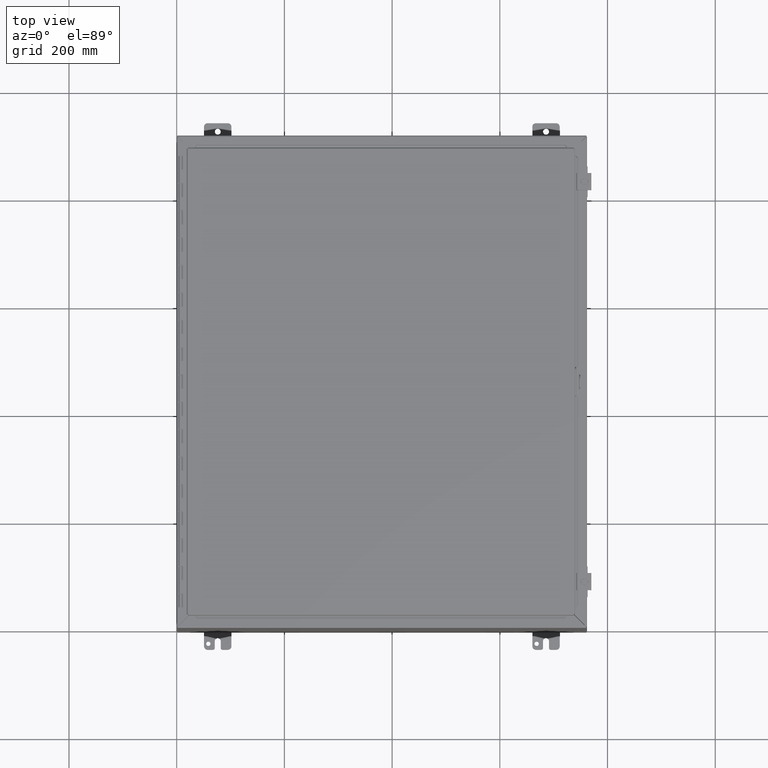
[diagram: clean part render]
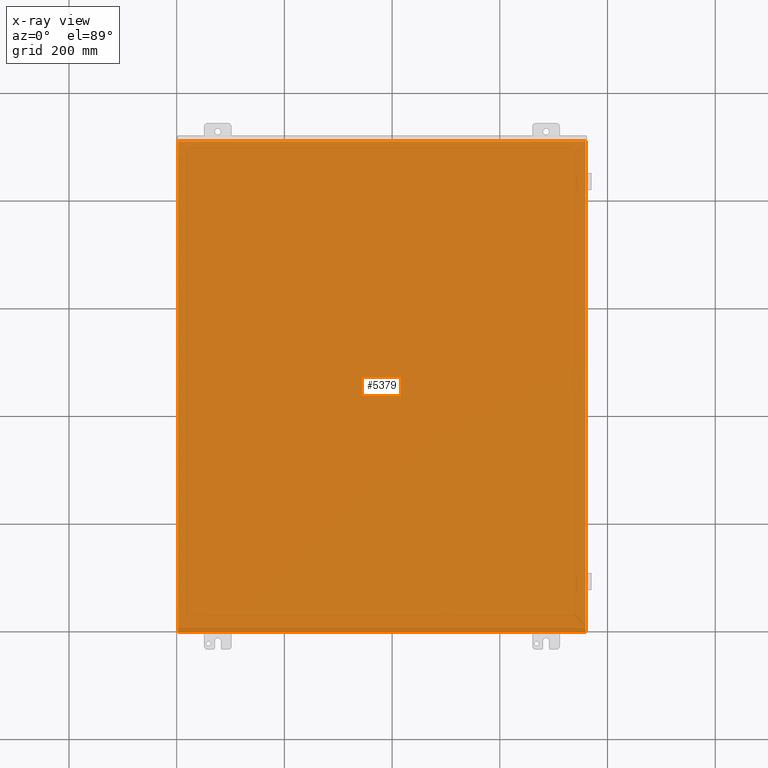
[diagram: x-ray — body ghosted, one internal face saturated and labeled with its STEP entity id]
A machine part, top view, then the same camera in x-ray: the body is ghosted and one INTERNAL B-rep face — a face not visible from any outside direction — is saturated and labeled: STEP entity #5379.
In plain terms, the highlighted planar face has unit normal (0, 0, 1).
Its self-contained STEP definition (entity closure, byte-faithful):
#5122=CARTESIAN_POINT('',(0.10524999999999,35.852000000000004,0.074));
#5123=VERTEX_POINT('',#5122);
#5148=CARTESIAN_POINT('',(0.105250000000001,0.0,0.074));
#5149=VERTEX_POINT('',#5148);
#5185=CARTESIAN_POINT('',(0.105249999999987,35.852000000000004,0.074));
#5186=DIRECTION('',(0.0,-1.0,0.0));
#5187=VECTOR('',#5186,35.852000000000004);
#5188=LINE('',#5185,#5187);
#5189=EDGE_CURVE('',#5123,#5149,#5188,.T.);
#5239=CARTESIAN_POINT('',(29.894750000000009,0.0,0.074));
#5240=VERTEX_POINT('',#5239);
#5265=CARTESIAN_POINT('',(29.894749999999995,35.852000000000011,0.074));
#5266=VERTEX_POINT('',#5265);
#5302=CARTESIAN_POINT('',(29.894750000000002,0.0,0.074));
#5303=DIRECTION('',(0.0,1.0,0.0));
#5304=VECTOR('',#5303,35.852000000000004);
#5305=LINE('',#5302,#5304);
#5306=EDGE_CURVE('',#5240,#5266,#5305,.T.);
#5325=CARTESIAN_POINT('',(0.105249999999987,35.852000000000004,0.074));
#5326=DIRECTION('',(1.0,0.0,0.0));
#5327=VECTOR('',#5326,29.789500000000007);
#5328=LINE('',#5325,#5327);
#5329=EDGE_CURVE('',#5123,#5266,#5328,.T.);
#5357=CARTESIAN_POINT('',(29.894750000000009,0.0,0.074));
#5358=DIRECTION('',(-1.0,0.0,0.0));
#5359=VECTOR('',#5358,29.789500000000007);
#5360=LINE('',#5357,#5359);
#5361=EDGE_CURVE('',#5240,#5149,#5360,.T.);
#5368=CARTESIAN_POINT('',(14.999999999999993,17.925999999999998,0.074));
#5369=DIRECTION('',(0.0,0.0,1.0));
#5370=DIRECTION('',(0.0,1.0,0.0));
#5371=AXIS2_PLACEMENT_3D('',#5368,#5369,#5370);
#5372=PLANE('',#5371);
#5373=ORIENTED_EDGE('',*,*,#5306,.T.);
#5374=ORIENTED_EDGE('',*,*,#5329,.F.);
#5375=ORIENTED_EDGE('',*,*,#5189,.T.);
#5376=ORIENTED_EDGE('',*,*,#5361,.F.);
#5377=EDGE_LOOP('',(#5373,#5374,#5375,#5376));
#5378=FACE_OUTER_BOUND('',#5377,.T.);
#5379=ADVANCED_FACE('',(#5378),#5372,.T.);